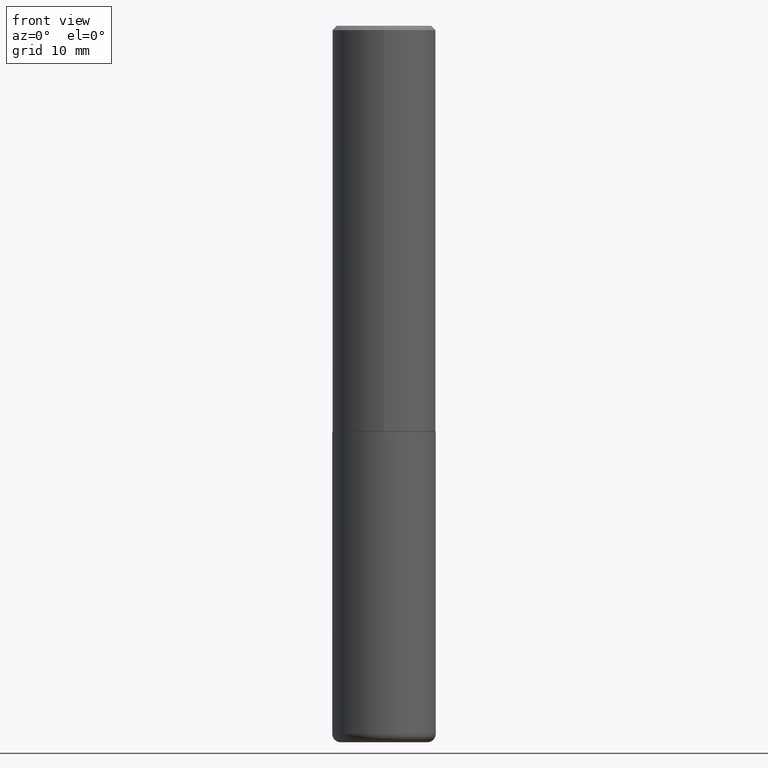
[diagram: clean part render]
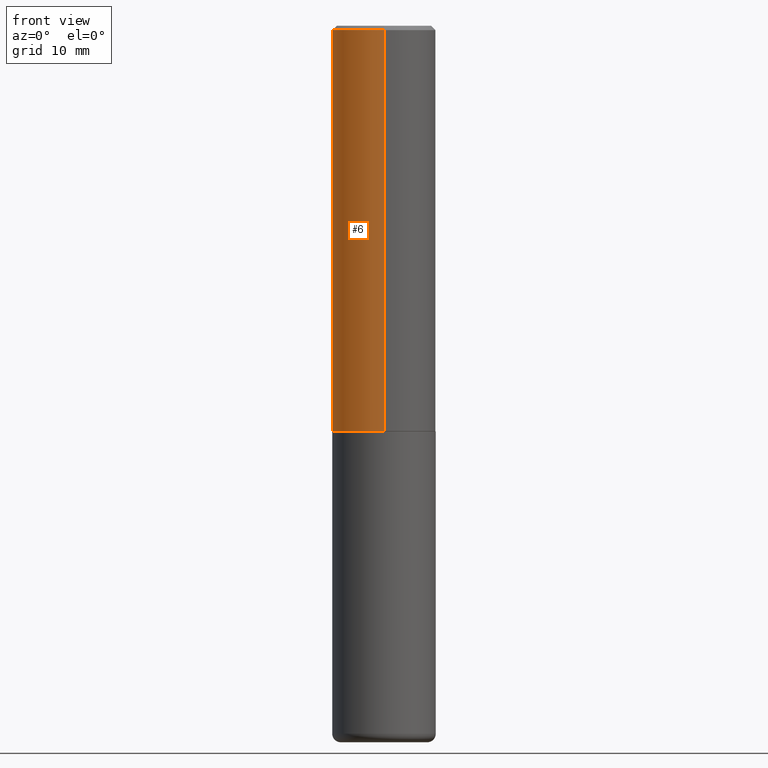
[diagram: same view with one face highlighted and labeled with its STEP entity id]
A machine part, front view. The second image highlights one B-rep face of the part: STEP entity #6.
In plain terms, the highlighted cylindrical surface (partial cylindrical patch) has radius 5.9995 mm, axis along (-0, 0, 1).
Its self-contained STEP definition (entity closure, byte-faithful):
#1 = CIRCLE ( 'NONE', #232, 0.2362000000000002153 ) ;
#6 = ADVANCED_FACE ( 'NONE', ( #366 ), #299, .T. ) ;
#21 = CIRCLE ( 'NONE', #242, 0.2361999999999999933 ) ;
#28 = EDGE_CURVE ( 'NONE', #48, #158, #82, .T. ) ;
#34 = EDGE_CURVE ( 'NONE', #137, #158, #21, .T. ) ;
#38 = VERTEX_POINT ( 'NONE', #150 ) ;
#41 = DIRECTION ( 'NONE',  ( -6.982962677686265922E-15, -1.000000000000000000, 3.487819265831411744E-15 ) ) ;
#47 = LINE ( 'NONE', #304, #184 ) ;
#48 = VERTEX_POINT ( 'NONE', #274 ) ;
#73 = DIRECTION ( 'NONE',  ( -6.982962677686265133E-15, -1.000000000000000000, 3.469747663417773847E-15 ) ) ;
#82 = LINE ( 'NONE', #291, #174 ) ;
#102 = DIRECTION ( 'NONE',  ( -2.445371925614294233E-29, 3.491620077334691546E-15, 1.000000000000000000 ) ) ;
#111 = DIRECTION ( 'NONE',  ( -2.445371925614294233E-29, 3.491620077334691546E-15, 1.000000000000000000 ) ) ;
#114 = ORIENTED_EDGE ( 'NONE', *, *, #28, .T. ) ;
#115 = CARTESIAN_POINT ( 'NONE',  ( 4.890743851228601113E-31, -6.983240154669400497E-17, -0.02000000000000005246 ) ) ;
#137 = VERTEX_POINT ( 'NONE', #223 ) ;
#150 = CARTESIAN_POINT ( 'NONE',  ( 1.678301941865380454E-15, 0.2361999999999937760, -1.849400000000001043 ) ) ;
#154 = CARTESIAN_POINT ( 'NONE',  ( -1.620449627073635079E-15, -0.2362000000000000766, -0.01999999999999922673 ) ) ;
#155 = ORIENTED_EDGE ( 'NONE', *, *, #418, .T. ) ;
#158 = VERTEX_POINT ( 'NONE', #154 ) ;
#174 = VECTOR ( 'NONE', #326, 39.37007874015748143 ) ;
#181 = EDGE_CURVE ( 'NONE', #38, #137, #47, .T. ) ;
#184 = VECTOR ( 'NONE', #111, 39.37007874015748143 ) ;
#189 = AXIS2_PLACEMENT_3D ( 'NONE', #205, #323, #336 ) ;
#203 = ORIENTED_EDGE ( 'NONE', *, *, #181, .F. ) ;
#205 = CARTESIAN_POINT ( 'NONE',  ( 0.000000000000000000, 0.000000000000000000, 0.000000000000000000 ) ) ;
#223 = CARTESIAN_POINT ( 'NONE',  ( 1.649375784469496525E-15, 0.2361999999999999378, -0.02000000000000087472 ) ) ;
#232 = AXIS2_PLACEMENT_3D ( 'NONE', #256, #102, #73 ) ;
#233 = DIRECTION ( 'NONE',  ( -2.445371925614294233E-29, 3.491620077334691546E-15, 1.000000000000000000 ) ) ;
#242 = AXIS2_PLACEMENT_3D ( 'NONE', #115, #233, #41 ) ;
#256 = CARTESIAN_POINT ( 'NONE',  ( 4.522470839231075964E-29, -6.457402171022779437E-15, -1.849400000000000155 ) ) ;
#274 = CARTESIAN_POINT ( 'NONE',  ( -1.649375784469452349E-15, -0.2362000000000066546, -1.849399999999999489 ) ) ;
#291 = CARTESIAN_POINT ( 'NONE',  ( -1.649375784469496722E-15, -0.2362000000000001043, 8.247206622664545710E-16 ) ) ;
#299 = CYLINDRICAL_SURFACE ( 'NONE', #189, 0.2362000000000001043 ) ;
#303 = ORIENTED_EDGE ( 'NONE', *, *, #34, .F. ) ;
#304 = CARTESIAN_POINT ( 'NONE',  ( 1.678301941865357183E-15, 0.2362000000000001043, -8.247206622664545710E-16 ) ) ;
#323 = DIRECTION ( 'NONE',  ( -2.445371925614294233E-29, 3.491620077334691546E-15, 1.000000000000000000 ) ) ;
#326 = DIRECTION ( 'NONE',  ( -2.445371925614294233E-29, 3.491620077334691546E-15, 1.000000000000000000 ) ) ;
#336 = DIRECTION ( 'NONE',  ( -6.982962677686265922E-15, -1.000000000000000000, 3.491620077334691941E-15 ) ) ;
#337 = EDGE_LOOP ( 'NONE', ( #203, #155, #114, #303 ) ) ;
#366 = FACE_OUTER_BOUND ( 'NONE', #337, .T. ) ;
#418 = EDGE_CURVE ( 'NONE', #38, #48, #1, .T. ) ;